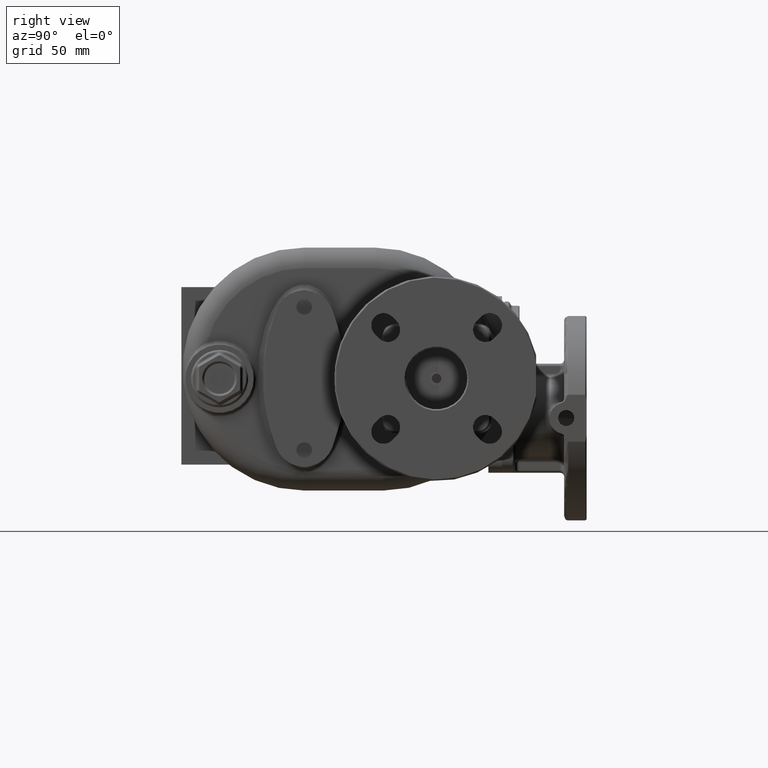
[diagram: clean part render]
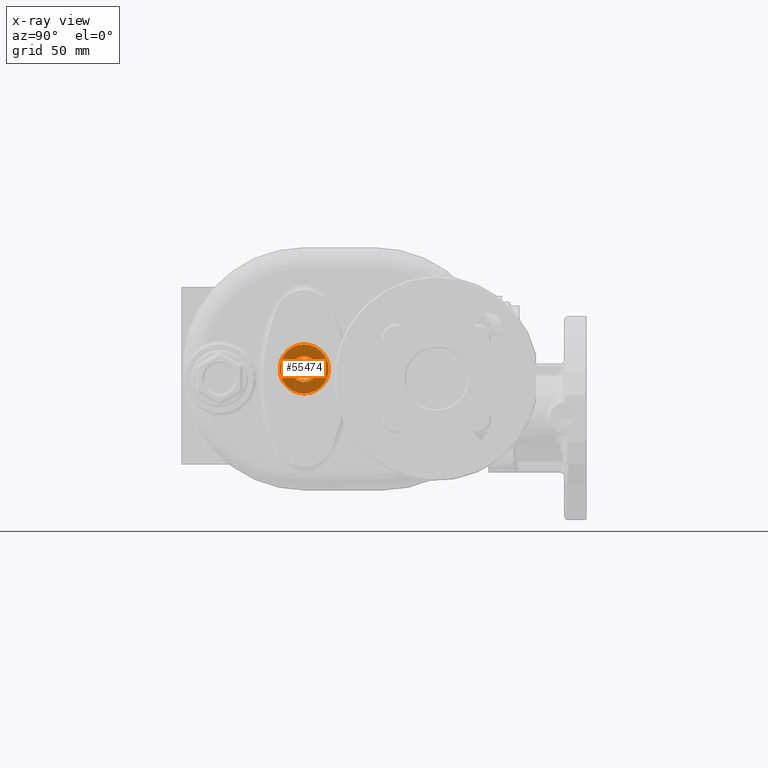
[diagram: x-ray — body ghosted, one internal face saturated and labeled with its STEP entity id]
A machine part, right view, then the same camera in x-ray: the body is ghosted and one INTERNAL B-rep face — a face not visible from any outside direction — is saturated and labeled: STEP entity #55474.
In plain terms, the highlighted planar face has unit normal (-1, 0, 0).
Its self-contained STEP definition (entity closure, byte-faithful):
#20449=CARTESIAN_POINT('',(-2.258E2,9.E1,0.E0));
#20450=DIRECTION('',(-1.E0,0.E0,0.E0));
#20451=DIRECTION('',(0.E0,0.E0,-1.E0));
#20452=AXIS2_PLACEMENT_3D('',#20449,#20450,#20451);
#20454=CARTESIAN_POINT('',(-2.258E2,9.E1,0.E0));
#20455=DIRECTION('',(-1.E0,0.E0,0.E0));
#20456=DIRECTION('',(0.E0,0.E0,1.E0));
#20457=AXIS2_PLACEMENT_3D('',#20454,#20455,#20456);
#20459=CARTESIAN_POINT('',(-2.258E2,9.E1,0.E0));
#20460=DIRECTION('',(1.E0,0.E0,0.E0));
#20461=DIRECTION('',(0.E0,0.E0,-1.E0));
#20462=AXIS2_PLACEMENT_3D('',#20459,#20460,#20461);
#20464=CARTESIAN_POINT('',(-2.258E2,9.E1,0.E0));
#20465=DIRECTION('',(1.E0,0.E0,0.E0));
#20466=DIRECTION('',(0.E0,0.E0,1.E0));
#20467=AXIS2_PLACEMENT_3D('',#20464,#20465,#20466);
#25907=CARTESIAN_POINT('',(-2.258E2,9.E1,-9.5E0));
#25908=CARTESIAN_POINT('',(-2.258E2,9.E1,9.5E0));
#25909=VERTEX_POINT('',#25907);
#25910=VERTEX_POINT('',#25908);
#25971=CARTESIAN_POINT('',(-2.258E2,9.E1,-1.8E1));
#25972=CARTESIAN_POINT('',(-2.258E2,9.E1,1.8E1));
#25973=VERTEX_POINT('',#25971);
#25974=VERTEX_POINT('',#25972);
#55458=CARTESIAN_POINT('',(-2.258E2,9.E1,0.E0));
#55459=DIRECTION('',(-1.E0,0.E0,0.E0));
#55460=DIRECTION('',(0.E0,-1.E0,0.E0));
#55461=AXIS2_PLACEMENT_3D('',#55458,#55459,#55460);
#55462=PLANE('',#55461);
#55463=ORIENTED_EDGE('',*,*,#55448,.F.);
#55465=ORIENTED_EDGE('',*,*,#55464,.F.);
#55466=EDGE_LOOP('',(#55463,#55465));
#55467=FACE_OUTER_BOUND('',#55466,.F.);
#55469=ORIENTED_EDGE('',*,*,#55468,.F.);
#55471=ORIENTED_EDGE('',*,*,#55470,.F.);
#55472=EDGE_LOOP('',(#55469,#55471));
#55473=FACE_BOUND('',#55472,.F.);
#55474=ADVANCED_FACE('',(#55467,#55473),#55462,.T.);
#20453=CIRCLE('',#20452,1.8E1);
#20458=CIRCLE('',#20457,1.8E1);
#20463=CIRCLE('',#20462,9.5E0);
#20468=CIRCLE('',#20467,9.5E0);
#55448=EDGE_CURVE('',#25973,#25974,#20453,.T.);
#55464=EDGE_CURVE('',#25974,#25973,#20458,.T.);
#55468=EDGE_CURVE('',#25909,#25910,#20463,.T.);
#55470=EDGE_CURVE('',#25910,#25909,#20468,.T.);